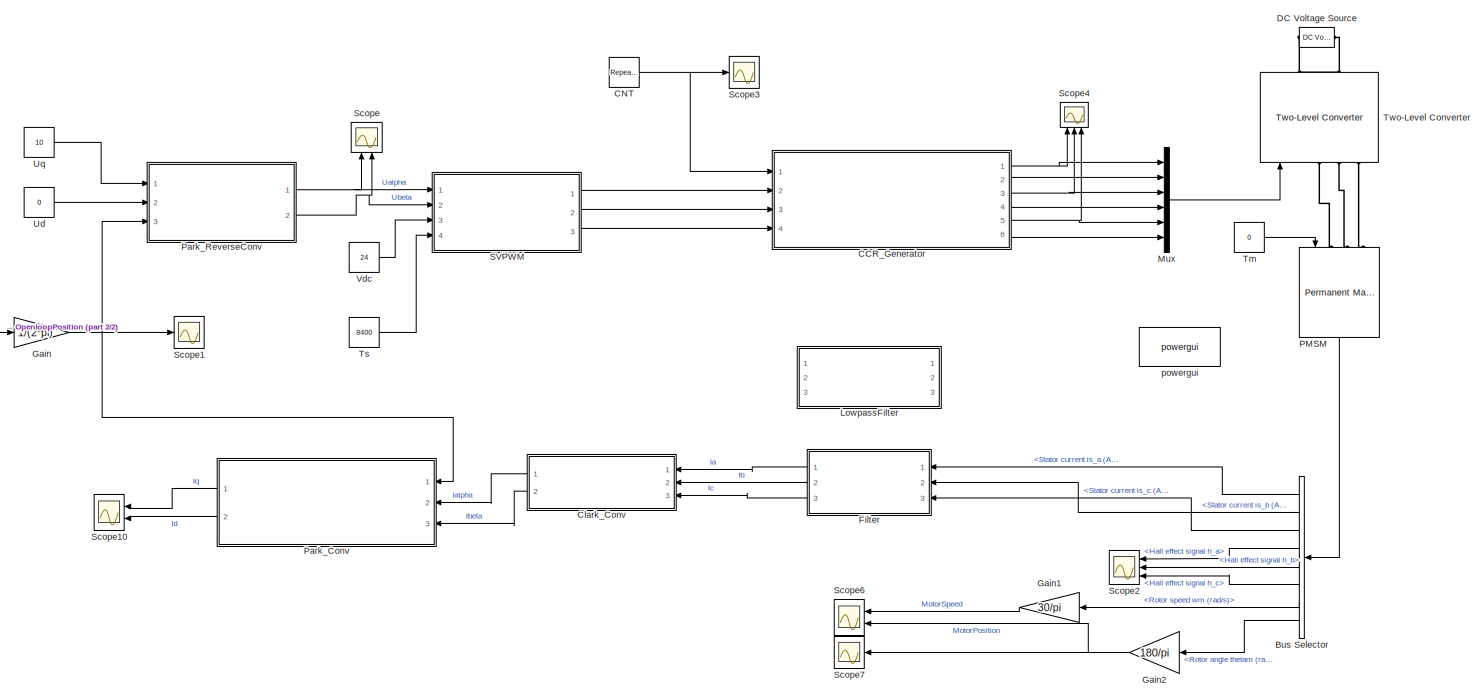
[diagram: root canvas - part 1/2, most of the canvas]
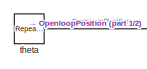
[diagram: root canvas - part 2/2, middle left region]
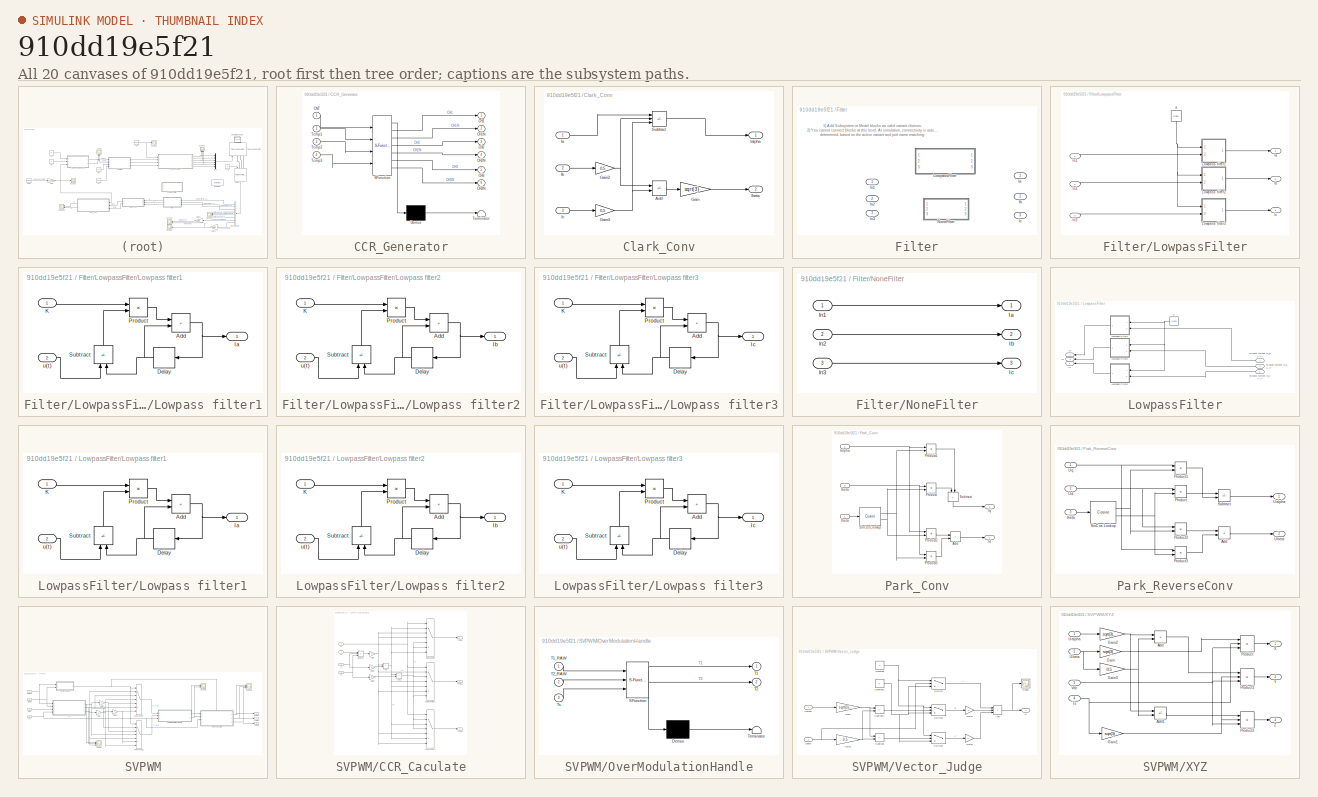
[diagram: thumbnail index - all 20 canvases of the model, root first then tree order]
MODEL slx_910dd19e5f21
KIND model
CONFIG AbsTol = auto
CONFIG EnableMultiTasking = off
CONFIG FixedStep = 0.00001
CONFIG MaxStep = auto
CONFIG MinStep = auto
CONFIG RelTol = 1e-3
CONFIG SampleTimeConstraint = Unconstrained
CONFIG SolverName = FixedStepDiscrete
CONFIG StartTime = 0.0
CONFIG StopTime = 1
WORKSPACE source: mxarray member
WORKSPACE K = 1
BLOCK [BusSelector] Bus Selector
  NameLocation = top
  OutputSignals = Stator current is_a (A),Stator current is_b (A),Stator current is_c (A),Hall effect signal h_a,Hall effect signal h_b,Hall effect signal h_c,Rotor speed wm (rad/s),Rotor angle thetam (rad)
  Ports = [1, 8]
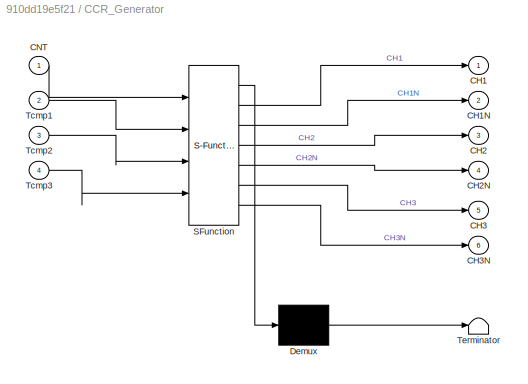
BLOCK [SubSystem] CCR_Generator
  ErrorFcn = Stateflow.Translate.translate
  PermitHierarchicalResolution = ExplicitOnly
  Ports = [4, 6]
  RequestExecContextInheritance = off
  SFBlockType = MATLAB Function
  TreatAsAtomicUnit = on
BLOCK [Demux] CCR_Generator/ Demux 
  Outputs = 1
  Ports = [1, 1]
BLOCK [S-Function] CCR_Generator/ SFunction 
  EnableBusSupport = on
  FunctionName = sf_sfun
  PortCounts = [4 7]
  Ports = [4, 7]
  SFcnIsStateOwnerBlock = off
  SFunctionDeploymentMode = off
  Tag = Stateflow S-Function 1
BLOCK [Terminator] CCR_Generator/ Terminator 
BLOCK [Outport] CCR_Generator/CH1
BLOCK [Outport] CCR_Generator/CH1N
  Port = 2
BLOCK [Outport] CCR_Generator/CH2
  Port = 3
BLOCK [Outport] CCR_Generator/CH2N
  Port = 4
BLOCK [Outport] CCR_Generator/CH3
  Port = 5
BLOCK [Outport] CCR_Generator/CH3N
  Port = 6
BLOCK [Inport] CCR_Generator/CNT
BLOCK [Inport] CCR_Generator/Tcmp1
  Port = 2
BLOCK [Inport] CCR_Generator/Tcmp2
  Port = 3
BLOCK [Inport] CCR_Generator/Tcmp3
  Port = 4
BLOCK [Reference] CNT  REF=simulink/Sources/Repeating
Sequence
  Ports = [0, 1]
  SourceBlock = simulink/Sources/Repeating\nSequence
  SourceProductBaseCode = SL
  SourceType = Repeating table
BLOCK [SubSystem] Clark_Conv
  Ports = [3, 2]
  RequestExecContextInheritance = off
BLOCK [Sum] Clark_Conv/Add
  IconShape = rectangular
  Inputs = +-
  Ports = [2, 1]
BLOCK [Gain] Clark_Conv/Gain
  Gain = sqrt(3)
BLOCK [Gain] Clark_Conv/Gain2
  Gain = 0.5
BLOCK [Gain] Clark_Conv/Gain3
  Gain = 0.5
BLOCK [Inport] Clark_Conv/Ia
BLOCK [Outport] Clark_Conv/Ialpha
BLOCK [Inport] Clark_Conv/Ib
  Port = 2
BLOCK [Outport] Clark_Conv/Ibeta
  Port = 2
BLOCK [Inport] Clark_Conv/Ic
  Port = 3
BLOCK [Sum] Clark_Conv/Subtract
  IconShape = rectangular
  Inputs = +--
  Ports = [3, 1]
BLOCK [Reference] DC Voltage Source  REF=spsDCVoltageSourceLib/DC Voltage Source
  NameLocation = right
  Ports = [0, 0, 0, 0, 0, 1, 1]
  SourceBlock = spsDCVoltageSourceLib/DC Voltage Source
  SourceProductBaseCode = PS
  SourceType = DC Voltage Source
BLOCK [SubSystem] Filter
  Ports = [3, 3]
  RequestExecContextInheritance = off
  Variant = on
BLOCK [Outport] Filter/Ia
BLOCK [Outport] Filter/Ib
  Port = 2
BLOCK [Outport] Filter/Ic
  Port = 3
BLOCK [SubSystem] Filter/LowpassFilter
  Ports = [3, 3]
  RequestExecContextInheritance = off
  VariantControl = K==1
BLOCK [Outport] Filter/LowpassFilter/Ia
BLOCK [Outport] Filter/LowpassFilter/Ib
  Port = 2
BLOCK [Outport] Filter/LowpassFilter/Ic
  Port = 3
BLOCK [SubSystem] Filter/LowpassFilter/Lowpass filter1
  Ports = [2, 1]
  RequestExecContextInheritance = off
BLOCK [Sum] Filter/LowpassFilter/Lowpass filter1/Add
  IconShape = rectangular
  Ports = [2, 1]
BLOCK [Delay] Filter/LowpassFilter/Lowpass filter1/Delay
  DelayLength = 1
  InputPortMap = u0
  Ports = [1, 1]
BLOCK [Outport] Filter/LowpassFilter/Lowpass filter1/Ia
BLOCK [Inport] Filter/LowpassFilter/Lowpass filter1/K
BLOCK [Product] Filter/LowpassFilter/Lowpass filter1/Product
  Ports = [2, 1]
BLOCK [Sum] Filter/LowpassFilter/Lowpass filter1/Subtract
  IconShape = rectangular
  Inputs = +-
  NameLocation = left
  Ports = [2, 1]
BLOCK [Inport] Filter/LowpassFilter/Lowpass filter1/u(t)
  Port = 2
BLOCK [SubSystem] Filter/LowpassFilter/Lowpass filter2
  Ports = [2, 1]
  RequestExecContextInheritance = off
BLOCK [Sum] Filter/LowpassFilter/Lowpass filter2/Add
  IconShape = rectangular
  Ports = [2, 1]
BLOCK [Delay] Filter/LowpassFilter/Lowpass filter2/Delay
  DelayLength = 1
  InputPortMap = u0
  Ports = [1, 1]
BLOCK [Outport] Filter/LowpassFilter/Lowpass filter2/Ib
BLOCK [Inport] Filter/LowpassFilter/Lowpass filter2/K
BLOCK [Product] Filter/LowpassFilter/Lowpass filter2/Product
  Ports = [2, 1]
BLOCK [Sum] Filter/LowpassFilter/Lowpass filter2/Subtract
  IconShape = rectangular
  Inputs = +-
  NameLocation = left
  Ports = [2, 1]
BLOCK [Inport] Filter/LowpassFilter/Lowpass filter2/u(t)
  Port = 2
BLOCK [SubSystem] Filter/LowpassFilter/Lowpass filter3
  Ports = [2, 1]
  RequestExecContextInheritance = off
BLOCK [Sum] Filter/LowpassFilter/Lowpass filter3/Add
  IconShape = rectangular
  Ports = [2, 1]
BLOCK [Delay] Filter/LowpassFilter/Lowpass filter3/Delay
  DelayLength = 1
  InputPortMap = u0
  Ports = [1, 1]
BLOCK [Outport] Filter/LowpassFilter/Lowpass filter3/Ic
BLOCK [Inport] Filter/LowpassFilter/Lowpass filter3/K
BLOCK [Product] Filter/LowpassFilter/Lowpass filter3/Product
  Ports = [2, 1]
BLOCK [Sum] Filter/LowpassFilter/Lowpass filter3/Subtract
  IconShape = rectangular
  Inputs = +-
  NameLocation = left
  Ports = [2, 1]
BLOCK [Inport] Filter/LowpassFilter/Lowpass filter3/u(t)
  Port = 2
BLOCK [Constant] Filter/LowpassFilter/a
  NameLocation = left
  Value = 0.001
BLOCK [Inport] Filter/LowpassFilter/ln1
BLOCK [Inport] Filter/LowpassFilter/ln2
  Port = 2
BLOCK [Inport] Filter/LowpassFilter/ln3
  Port = 3
BLOCK [SubSystem] Filter/NoneFilter
  Ports = [3, 3]
  RequestExecContextInheritance = off
  VariantControl = K==0
BLOCK [Outport] Filter/NoneFilter/Ia
BLOCK [Outport] Filter/NoneFilter/Ib
  Port = 2
BLOCK [Outport] Filter/NoneFilter/Ic
  Port = 3
BLOCK [Inport] Filter/NoneFilter/ln1
BLOCK [Inport] Filter/NoneFilter/ln2
  Port = 2
BLOCK [Inport] Filter/NoneFilter/ln3
  Port = 3
BLOCK [Inport] Filter/ln1
BLOCK [Inport] Filter/ln2
  Port = 2
BLOCK [Inport] Filter/ln3
  Port = 3
BLOCK [Gain] Gain
  Gain = 1/(2*pi)
BLOCK [Gain] Gain1
  Gain = 30/pi
BLOCK [Gain] Gain2
  Gain = 180/pi
  NameLocation = top
BLOCK [SubSystem] LowpassFilter
  Commented = on
  Ports = [3, 3]
  RequestExecContextInheritance = off
BLOCK [Inport] LowpassFilter/<Stator current is_a (A)>
BLOCK [Inport] LowpassFilter/<Stator current is_b (A)>
  Port = 2
BLOCK [Inport] LowpassFilter/<Stator current is_c (A)>
  Port = 3
BLOCK [Outport] LowpassFilter/Ia
BLOCK [Outport] LowpassFilter/Ib
  Port = 2
BLOCK [Outport] LowpassFilter/Ic
  Port = 3
BLOCK [SubSystem] LowpassFilter/Lowpass filter1
  Ports = [2, 1]
  RequestExecContextInheritance = off
BLOCK [Sum] LowpassFilter/Lowpass filter1/Add
  IconShape = rectangular
  Ports = [2, 1]
BLOCK [Delay] LowpassFilter/Lowpass filter1/Delay
  DelayLength = 1
  InputPortMap = u0
  Ports = [1, 1]
BLOCK [Outport] LowpassFilter/Lowpass filter1/Ia
BLOCK [Inport] LowpassFilter/Lowpass filter1/K
BLOCK [Product] LowpassFilter/Lowpass filter1/Product
  Ports = [2, 1]
BLOCK [Sum] LowpassFilter/Lowpass filter1/Subtract
  IconShape = rectangular
  Inputs = +-
  NameLocation = left
  Ports = [2, 1]
BLOCK [Inport] LowpassFilter/Lowpass filter1/u(t)
  Port = 2
BLOCK [SubSystem] LowpassFilter/Lowpass filter2
  Ports = [2, 1]
  RequestExecContextInheritance = off
BLOCK [Sum] LowpassFilter/Lowpass filter2/Add
  IconShape = rectangular
  Ports = [2, 1]
BLOCK [Delay] LowpassFilter/Lowpass filter2/Delay
  DelayLength = 1
  InputPortMap = u0
  Ports = [1, 1]
BLOCK [Outport] LowpassFilter/Lowpass filter2/Ib
BLOCK [Inport] LowpassFilter/Lowpass filter2/K
BLOCK [Product] LowpassFilter/Lowpass filter2/Product
  Ports = [2, 1]
BLOCK [Sum] LowpassFilter/Lowpass filter2/Subtract
  IconShape = rectangular
  Inputs = +-
  NameLocation = left
  Ports = [2, 1]
BLOCK [Inport] LowpassFilter/Lowpass filter2/u(t)
  Port = 2
BLOCK [SubSystem] LowpassFilter/Lowpass filter3
  Ports = [2, 1]
  RequestExecContextInheritance = off
BLOCK [Sum] LowpassFilter/Lowpass filter3/Add
  IconShape = rectangular
  Ports = [2, 1]
BLOCK [Delay] LowpassFilter/Lowpass filter3/Delay
  DelayLength = 1
  InputPortMap = u0
  Ports = [1, 1]
BLOCK [Outport] LowpassFilter/Lowpass filter3/Ic
BLOCK [Inport] LowpassFilter/Lowpass filter3/K
BLOCK [Product] LowpassFilter/Lowpass filter3/Product
  Ports = [2, 1]
BLOCK [Sum] LowpassFilter/Lowpass filter3/Subtract
  IconShape = rectangular
  Inputs = +-
  NameLocation = left
  Ports = [2, 1]
BLOCK [Inport] LowpassFilter/Lowpass filter3/u(t)
  Port = 2
BLOCK [Constant] LowpassFilter/a
  Value = 0.001
BLOCK [Mux] Mux
  DisplayOption = bar
  Inputs = 6
  Ports = [6, 1]
BLOCK [Reference] PMSM  REF=spsPermanentMagnetSynchronousMachineLib/Permanent Magnet
Synchronous Machine
  NameLocation = left
  Ports = [1, 1, 0, 0, 0, 3]
  SourceBlock = spsPermanentMagnetSynchronousMachineLib/Permanent Magnet\nSynchronous Machine
  SourceProductBaseCode = PS
  SourceType = Permanent Magnet Synchronous Machine
BLOCK [SubSystem] Park_Conv
  Ports = [3, 2]
  RequestExecContextInheritance = off
BLOCK [Sum] Park_Conv/Add
  IconShape = rectangular
  Ports = [2, 1]
BLOCK [Inport] Park_Conv/Ialpha
  Port = 2
BLOCK [Inport] Park_Conv/Ibeta
  Port = 3
BLOCK [Outport] Park_Conv/Id
  Port = 2
BLOCK [Outport] Park_Conv/Iq
BLOCK [Product] Park_Conv/Product
  Ports = [2, 1]
BLOCK [Product] Park_Conv/Product1
  Ports = [2, 1]
BLOCK [Product] Park_Conv/Product2
  Ports = [2, 1]
BLOCK [Product] Park_Conv/Product3
  Ports = [2, 1]
BLOCK [Reference] Park_Conv/SinCos Lookup  REF=simulink/Lookup
Tables/Cosine
  Ports = [1, 2]
  SourceBlock = simulink/Lookup\nTables/Cosine
  SourceProductBaseCode = SL
  SourceType = Sine and Cosine
BLOCK [Sum] Park_Conv/Subtract
  IconShape = rectangular
  Inputs = +-
  NameLocation = right
  Ports = [2, 1]
BLOCK [Inport] Park_Conv/theta
BLOCK [SubSystem] Park_ReverseConv
  Ports = [3, 2]
  RequestExecContextInheritance = off
BLOCK [Sum] Park_ReverseConv/Add
  IconShape = rectangular
  Ports = [2, 1]
BLOCK [Product] Park_ReverseConv/Product
  Ports = [2, 1]
BLOCK [Product] Park_ReverseConv/Product1
  Ports = [2, 1]
BLOCK [Product] Park_ReverseConv/Product2
  Ports = [2, 1]
BLOCK [Product] Park_ReverseConv/Product3
  Ports = [2, 1]
BLOCK [Reference] Park_ReverseConv/SinCos Lookup  REF=simulink/Lookup
Tables/Cosine
  Ports = [1, 2]
  SourceBlock = simulink/Lookup\nTables/Cosine
  SourceProductBaseCode = SL
  SourceType = Sine and Cosine
BLOCK [Sum] Park_ReverseConv/Subtract
  IconShape = rectangular
  Inputs = +-
  Ports = [2, 1]
BLOCK [Outport] Park_ReverseConv/Ualpha
BLOCK [Outport] Park_ReverseConv/Ubeta
  Port = 2
BLOCK [Inport] Park_ReverseConv/Ud
  Port = 2
BLOCK [Inport] Park_ReverseConv/Uq
BLOCK [Inport] Park_ReverseConv/theta
  Port = 3
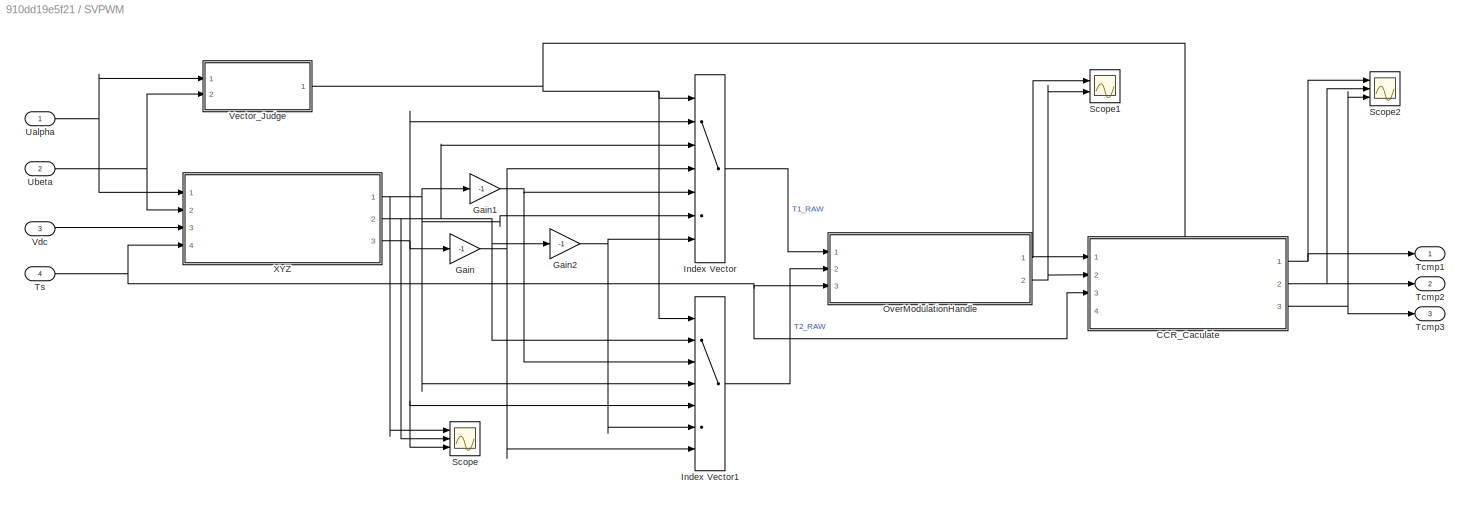
BLOCK [SubSystem] SVPWM
  Ports = [4, 3]
  RequestExecContextInheritance = off
BLOCK [SubSystem] SVPWM/CCR_Caculate
  PortSchema = {"entries":[{"content":{"sides":[{"content":{"connectorIds":["In1","In2","In3"]},"type":"ConnectorPlacement.EquallySpacedRectSide","uuid":"41d89106-695f-4d7e-9c99-c52170b99868"},{"content":{"connectorIds":["Out1","Out2","Out3"],"side":"RIGHT"},"type":"ConnectorPlacement.EquallySpacedRectSide","uuid":"0fa1e6b9-7088-4c16-9dd3-c016449aae3e"},{"content":{"connectorIds":["In4"],"side":"TOP"},"type":"Co...<+271ch>
  Ports = [4, 3]
  RequestExecContextInheritance = off
BLOCK [Sum] SVPWM/CCR_Caculate/Add
  IconShape = rectangular
  Ports = [2, 1]
BLOCK [Sum] SVPWM/CCR_Caculate/Add1
  IconShape = rectangular
  Ports = [2, 1]
BLOCK [Gain] SVPWM/CCR_Caculate/Gain
  Gain = 1/4
BLOCK [Gain] SVPWM/CCR_Caculate/Gain1
  Gain = 1/2
BLOCK [Gain] SVPWM/CCR_Caculate/Gain2
  Gain = 1/2
BLOCK [MultiPortSwitch] SVPWM/CCR_Caculate/Index Vector
  InputSameDT = off
  Inputs = 6
  Ports = [7, 1]
  SaturateOnIntegerOverflow = off
BLOCK [MultiPortSwitch] SVPWM/CCR_Caculate/Index Vector1
  InputSameDT = off
  Inputs = 6
  Ports = [7, 1]
  SaturateOnIntegerOverflow = off
BLOCK [MultiPortSwitch] SVPWM/CCR_Caculate/Index Vector2
  InputSameDT = off
  Inputs = 6
  Ports = [7, 1]
  SaturateOnIntegerOverflow = off
BLOCK [Inport] SVPWM/CCR_Caculate/N
  Port = 4
BLOCK [Sum] SVPWM/CCR_Caculate/Subtract
  IconShape = rectangular
  Inputs = +--
  Ports = [3, 1]
BLOCK [Inport] SVPWM/CCR_Caculate/T1
BLOCK [Inport] SVPWM/CCR_Caculate/T2
  Port = 2
BLOCK [Outport] SVPWM/CCR_Caculate/Tcmp1
BLOCK [Outport] SVPWM/CCR_Caculate/Tcmp2
  Port = 2
BLOCK [Outport] SVPWM/CCR_Caculate/Tcmp3
  Port = 3
BLOCK [Inport] SVPWM/CCR_Caculate/Ts
  Port = 3
BLOCK [Gain] SVPWM/Gain
  Gain = -1
BLOCK [Gain] SVPWM/Gain1
  Gain = -1
BLOCK [Gain] SVPWM/Gain2
  Gain = -1
BLOCK [MultiPortSwitch] SVPWM/Index Vector
  InputSameDT = off
  Inputs = 6
  Ports = [7, 1]
  SaturateOnIntegerOverflow = off
BLOCK [MultiPortSwitch] SVPWM/Index Vector1
  InputSameDT = off
  Inputs = 6
  Ports = [7, 1]
  SaturateOnIntegerOverflow = off
BLOCK [SubSystem] SVPWM/OverModulationHandle
  ErrorFcn = Stateflow.Translate.translate
  PermitHierarchicalResolution = ExplicitOnly
  Ports = [3, 2]
  RequestExecContextInheritance = off
  SFBlockType = MATLAB Function
  TreatAsAtomicUnit = on
BLOCK [Demux] SVPWM/OverModulationHandle/ Demux 
  Outputs = 1
  Ports = [1, 1]
BLOCK [S-Function] SVPWM/OverModulationHandle/ SFunction 
  EnableBusSupport = on
  FunctionName = sf_sfun
  PortCounts = [3 3]
  Ports = [3, 3]
  SFcnIsStateOwnerBlock = off
  SFunctionDeploymentMode = off
  Tag = Stateflow S-Function 2
BLOCK [Terminator] SVPWM/OverModulationHandle/ Terminator 
BLOCK [Outport] SVPWM/OverModulationHandle/T1
BLOCK [Inport] SVPWM/OverModulationHandle/T1_RAW
BLOCK [Outport] SVPWM/OverModulationHandle/T2
  Port = 2
BLOCK [Inport] SVPWM/OverModulationHandle/T2_RAW
  Port = 2
BLOCK [Inport] SVPWM/OverModulationHandle/Ts
  Port = 3
BLOCK [Scope] SVPWM/Scope
  Floating = off
  NumInputPorts = 3
  Ports = [3]
  ScopeSpecificationString = Simulink.scopes.TimeScopeBlockCfg('CurrentConfiguration', extmgr.ConfigurationSet(extmgr.Configuration('Core','General UI',true),extmgr.Configuration('Core','Source UI',true),extmgr.Configuration('Sources','WiredSimulink',true,'DataLoggingVariableName','ScopeData2'),extmgr.Configuration('Visuals','Time Domain',true,'SerializedDisplays',{struct('MinYLimReal','-10840.7399','MaxYLimReal','10882.04333...<+1438ch>
BLOCK [Scope] SVPWM/Scope1
  Floating = off
  NumInputPorts = 2
  Ports = [2]
  ScopeSpecificationString = Simulink.scopes.TimeScopeBlockCfg('CurrentConfiguration', extmgr.ConfigurationSet(extmgr.Configuration('Core','General UI',true),extmgr.Configuration('Core','Source UI',true),extmgr.Configuration('Sources','WiredSimulink',true,'DataLoggingVariableName','ScopeData3'),extmgr.Configuration('Visuals','Time Domain',true,'SerializedDisplays',{struct('MinYLimReal','-881.09887','MaxYLimReal','7929.96151',...<+1456ch>
BLOCK [Scope] SVPWM/Scope2
  Floating = off
  NumInputPorts = 3
  Ports = [3]
  ScopeSpecificationString = Simulink.scopes.TimeScopeBlockCfg('CurrentConfiguration', extmgr.ConfigurationSet(extmgr.Configuration('Core','General UI',true),extmgr.Configuration('Core','Source UI',true),extmgr.Configuration('Sources','WiredSimulink',true,'DataLoggingVariableName','ScopeData4'),extmgr.Configuration('Visuals','Time Domain',true,'SerializedDisplays',{struct('MinYLimReal','205.56943','MaxYLimReal','3994.43057','...<+1456ch>
BLOCK [Outport] SVPWM/Tcmp1
BLOCK [Outport] SVPWM/Tcmp2
  Port = 2
BLOCK [Outport] SVPWM/Tcmp3
  Port = 3
BLOCK [Inport] SVPWM/Ts
  Port = 4
BLOCK [Inport] SVPWM/Ualpha
BLOCK [Inport] SVPWM/Ubeta
  Port = 2
BLOCK [Inport] SVPWM/Vdc
  Port = 3
BLOCK [SubSystem] SVPWM/Vector_Judge
  Ports = [2, 1]
  RequestExecContextInheritance = off
BLOCK [Sum] SVPWM/Vector_Judge/Add
  IconShape = rectangular
  Inputs = +++
  Ports = [3, 1]
BLOCK [Constant] SVPWM/Vector_Judge/Constant
BLOCK [Constant] SVPWM/Vector_Judge/Constant1
  Value = 0
BLOCK [Gain] SVPWM/Vector_Judge/Gain
  Gain = sqrt(3)/2
BLOCK [Gain] SVPWM/Vector_Judge/Gain1
  Gain = 0.5
BLOCK [Gain] SVPWM/Vector_Judge/Gain2
  Gain = 2
BLOCK [Gain] SVPWM/Vector_Judge/Gain3
  Gain = 4
BLOCK [Outport] SVPWM/Vector_Judge/N
BLOCK [Scope] SVPWM/Vector_Judge/Scope
  Floating = off
  NumInputPorts = 1
  Ports = [1]
  ScopeSpecificationString = Simulink.scopes.TimeScopeBlockCfg('CurrentConfiguration', extmgr.ConfigurationSet(extmgr.Configuration('Core','General UI',true),extmgr.Configuration('Core','Source UI',true),extmgr.Configuration('Sources','WiredSimulink',true,'DataLoggingVariableName','ScopeData1'),extmgr.Configuration('Visuals','Time Domain',true,'SerializedDisplays',{struct('MinYLimReal','0.375','MaxYLimReal','6.625','YLabelRea...<+1371ch>
BLOCK [Sum] SVPWM/Vector_Judge/Subtract
  IconShape = rectangular
  Inputs = --
  Ports = [2, 1]
BLOCK [Sum] SVPWM/Vector_Judge/Subtract1
  IconShape = rectangular
  Inputs = +-
  Ports = [2, 1]
BLOCK [Switch] SVPWM/Vector_Judge/Switch
  Criteria = u2 > Threshold
  InputSameDT = off
  SaturateOnIntegerOverflow = off
BLOCK [Switch] SVPWM/Vector_Judge/Switch1
  Criteria = u2 > Threshold
  InputSameDT = off
  SaturateOnIntegerOverflow = off
BLOCK [Switch] SVPWM/Vector_Judge/Switch2
  Criteria = u2 > Threshold
  InputSameDT = off
  SaturateOnIntegerOverflow = off
BLOCK [Inport] SVPWM/Vector_Judge/Ualpha
BLOCK [Inport] SVPWM/Vector_Judge/Ubeta
  Port = 2
BLOCK [SubSystem] SVPWM/XYZ
  Ports = [4, 3]
  RequestExecContextInheritance = off
BLOCK [Sum] SVPWM/XYZ/Add
  IconShape = rectangular
  Ports = [2, 1]
BLOCK [Sum] SVPWM/XYZ/Add1
  IconShape = rectangular
  Inputs = -+
  Ports = [2, 1]
BLOCK [Gain] SVPWM/XYZ/Gain
  Gain = sqrt(3)
BLOCK [Gain] SVPWM/XYZ/Gain1
  Gain = sqrt(3)
BLOCK [Gain] SVPWM/XYZ/Gain2
  Gain = sqrt(3)/2
BLOCK [Gain] SVPWM/XYZ/Gain3
  Gain = 0.5
BLOCK [Product] SVPWM/XYZ/Product
  Inputs = **/
  Ports = [3, 1]
BLOCK [Product] SVPWM/XYZ/Product1
  Inputs = **/
  Ports = [3, 1]
BLOCK [Product] SVPWM/XYZ/Product2
  Inputs = **/
  Ports = [3, 1]
BLOCK [Inport] SVPWM/XYZ/Ts
  Port = 4
BLOCK [Inport] SVPWM/XYZ/Ualpha
BLOCK [Inport] SVPWM/XYZ/Ubeta
  Port = 2
BLOCK [Inport] SVPWM/XYZ/Vdc
  Port = 3
BLOCK [Outport] SVPWM/XYZ/X
BLOCK [Outport] SVPWM/XYZ/Y
  Port = 2
BLOCK [Outport] SVPWM/XYZ/Z
  Port = 3
BLOCK [Scope] Scope
  Floating = off
  NameLocation = right
  NumInputPorts = 2
  Ports = [2]
  ScopeSpecificationString = Simulink.scopes.TimeScopeBlockCfg('CurrentConfiguration', extmgr.ConfigurationSet(extmgr.Configuration('Core','General UI',true,'FigureColor',[1 1 1]),extmgr.Configuration('Core','Source UI',true),extmgr.Configuration('Sources','WiredSimulink',true),extmgr.Configuration('Visuals','Time Domain',true,'SerializedDisplays',{struct('MinYLimReal','-12.5','MaxYLimReal','12.5','YLabelReal','电压(V)','MinYLi...<+1706ch>
BLOCK [Scope] Scope1
  Floating = off
  NumInputPorts = 1
  Ports = [1]
  ScopeSpecificationString = Simulink.scopes.TimeScopeBlockCfg('CurrentConfiguration', extmgr.ConfigurationSet(extmgr.Configuration('Core','General UI',true),extmgr.Configuration('Core','Source UI',true),extmgr.Configuration('Sources','WiredSimulink',true,'DataLoggingVariableName','ScopeData1'),extmgr.Configuration('Visuals','Time Domain',true,'SerializedDisplays',{struct('MinYLimReal','-0.12487','MaxYLimReal','1.12388','YLab...<+1436ch>
BLOCK [Scope] Scope10
  Floating = off
  NumInputPorts = 2
  Ports = [2]
  ScopeSpecificationString = Simulink.scopes.TimeScopeBlockCfg('CurrentConfiguration', extmgr.ConfigurationSet(extmgr.Configuration('Core','General UI',true,'FigureColor',[1 1 1]),extmgr.Configuration('Core','Source UI',true),extmgr.Configuration('Sources','WiredSimulink',true,'DataLoggingVariableName','ScopeData1'),extmgr.Configuration('Visuals','Time Domain',true,'SerializedDisplays',{struct('MinYLimReal','-18.97976','MaxYL...<+1681ch>
BLOCK [Scope] Scope2
  Floating = off
  NumInputPorts = 3
  Ports = [3]
  ScopeSpecificationString = Simulink.scopes.TimeScopeBlockCfg('CurrentConfiguration', extmgr.ConfigurationSet(extmgr.Configuration('Core','General UI',true),extmgr.Configuration('Core','Source UI',true),extmgr.Configuration('Sources','WiredSimulink',true,'DataLoggingVariableName','ScopeData3'),extmgr.Configuration('Visuals','Time Domain',true,'SerializedDisplays',{struct('MinYLimReal','-0.125','MaxYLimReal','1.125','YLabelRe...<+2804ch>
BLOCK [Scope] Scope3
  Floating = off
  NumInputPorts = 1
  Ports = [1]
  ScopeSpecificationString = Simulink.scopes.TimeScopeBlockCfg('CurrentConfiguration', extmgr.ConfigurationSet(extmgr.Configuration('Core','General UI',true),extmgr.Configuration('Core','Source UI',true),extmgr.Configuration('Sources','WiredSimulink',true,'DataLoggingVariableName','ScopeData1'),extmgr.Configuration('Visuals','Time Domain',true,'SerializedDisplays',{struct('MinYLimReal','-525.00000','MaxYLimReal','4725.00000',...<+1453ch>
BLOCK [Scope] Scope4
  Floating = off
  NameLocation = right
  NumInputPorts = 3
  Ports = [3]
  ScopeSpecificationString = Simulink.scopes.TimeScopeBlockCfg('CurrentConfiguration', extmgr.ConfigurationSet(extmgr.Configuration('Core','General UI',true,'FigureColor',[1 1 1]),extmgr.Configuration('Core','Source UI',true),extmgr.Configuration('Sources','WiredSimulink',true,'DataLoggingVariableName','ScopeData2'),extmgr.Configuration('Visuals','Time Domain',true,'SerializedDisplays',{struct('MinYLimReal','-0.125','MaxYLimR...<+3275ch>
BLOCK [Scope] Scope6
  Floating = off
  NumInputPorts = 2
  Ports = [2]
  ScopeSpecificationString = Simulink.scopes.TimeScopeBlockCfg('CurrentConfiguration', extmgr.ConfigurationSet(extmgr.Configuration('Core','General UI',true,'FigureColor',[1 1 1]),extmgr.Configuration('Core','Source UI',true),extmgr.Configuration('Sources','WiredSimulink',true,'DataLoggingVariableName','ScopeData5'),extmgr.Configuration('Visuals','Time Domain',true,'SerializedDisplays',{struct('MinYLimReal','-37.45602','MaxYL...<+2324ch>
BLOCK [Scope] Scope7
  Floating = off
  NameLocation = top
  NumInputPorts = 1
  Ports = [1]
  ScopeSpecificationString = Simulink.scopes.TimeScopeBlockCfg('CurrentConfiguration', extmgr.ConfigurationSet(extmgr.Configuration('Core','General UI',true),extmgr.Configuration('Core','Source UI',true),extmgr.Configuration('Sources','WiredSimulink',true,'DataLoggingVariableName','ScopeData6'),extmgr.Configuration('Visuals','Time Domain',true,'SerializedDisplays',{struct('MinYLimReal','-49.17272','MaxYLimReal','442.55451','Y...<+1428ch>
BLOCK [Constant] Tm
  Value = 0
BLOCK [Constant] Ts
  Value = 8400
BLOCK [Reference] Two-Level Converter  REF=spsTwoLevelConverterLib/Two-Level Converter
  NameLocation = right
  Ports = [2, 0, 0, 0, 0, 3, 2]
  SourceBlock = spsTwoLevelConverterLib/Two-Level Converter
  SourceProductBaseCode = PS
  SourceType = Two-Level Converter
BLOCK [Constant] Ud
  Value = 0
BLOCK [Constant] Uq
  Value = 10
BLOCK [Constant] Vdc
  Value = 24
BLOCK [Reference] powergui  REF=spspowerguiLib/powergui
  Ports = []
  Priority = 1
  SourceBlock = spspowerguiLib/powergui
  SourceProductBaseCode = PS
  SourceType = PSB option menu block
BLOCK [Reference] theta  REF=simulink/Sources/Repeating
Sequence
  Ports = [0, 1]
  SourceBlock = simulink/Sources/Repeating\nSequence
  SourceProductBaseCode = SL
  SourceType = Repeating table
ANNOTATION Filter: 1) Add Subsystem or Model blocks as valid variant choices. 2) You cannot connect blocks at this level. At simulation, connectivity is automatically determined, based on the active variant and port name matching.
LINE Bus Selector:1 -> Filter:1
LINE Bus Selector:2 -> Filter:2
LINE Bus Selector:3 -> Filter:3
LINE Bus Selector:4 -> Scope2:1
LINE Bus Selector:5 -> Scope2:2
LINE Bus Selector:6 -> Scope2:3
LINE Bus Selector:7 -> Gain1:1
LINE Bus Selector:8 -> Gain2:1
NET CCR_Generator:1 -> Mux:1, Scope4:1
LINE CCR_Generator:2 -> Mux:2
NET CCR_Generator:3 -> Mux:3, Scope4:2
LINE CCR_Generator:4 -> Mux:4
NET CCR_Generator:5 -> Mux:5, Scope4:3
LINE CCR_Generator:6 -> Mux:6
NET CNT:1 -> CCR_Generator:1, Scope3:1
LINE Clark_Conv/Add:1 -> Clark_Conv/Gain:1
NET Clark_Conv/Gain2:1 -> Clark_Conv/Add:1, Clark_Conv/Subtract:2
NET Clark_Conv/Gain3:1 -> Clark_Conv/Add:2, Clark_Conv/Subtract:3
LINE Clark_Conv/Gain:1 -> Clark_Conv/Ibeta:1
LINE Clark_Conv/Ia:1 -> Clark_Conv/Subtract:1
LINE Clark_Conv/Ib:1 -> Clark_Conv/Gain2:1
LINE Clark_Conv/Ic:1 -> Clark_Conv/Gain3:1
LINE Clark_Conv/Subtract:1 -> Clark_Conv/Ialpha:1
LINE Clark_Conv:1 -> Park_Conv:2
LINE Clark_Conv:2 -> Park_Conv:3
NET Filter/LowpassFilter/Lowpass filter1/Add:1 -> Filter/LowpassFilter/Lowpass filter1/Delay:1, Filter/LowpassFilter/Lowpass filter1/Ia:1
NET Filter/LowpassFilter/Lowpass filter1/Delay:1 -> Filter/LowpassFilter/Lowpass filter1/Add:2, Filter/LowpassFilter/Lowpass filter1/Subtract:2
LINE Filter/LowpassFilter/Lowpass filter1/K:1 -> Filter/LowpassFilter/Lowpass filter1/Product:1
LINE Filter/LowpassFilter/Lowpass filter1/Product:1 -> Filter/LowpassFilter/Lowpass filter1/Add:1
LINE Filter/LowpassFilter/Lowpass filter1/Subtract:1 -> Filter/LowpassFilter/Lowpass filter1/Product:2
LINE Filter/LowpassFilter/Lowpass filter1/u(t):1 -> Filter/LowpassFilter/Lowpass filter1/Subtract:1
LINE Filter/LowpassFilter/Lowpass filter1:1 -> Filter/LowpassFilter/Ia:1
NET Filter/LowpassFilter/Lowpass filter2/Add:1 -> Filter/LowpassFilter/Lowpass filter2/Delay:1, Filter/LowpassFilter/Lowpass filter2/Ib:1
NET Filter/LowpassFilter/Lowpass filter2/Delay:1 -> Filter/LowpassFilter/Lowpass filter2/Add:2, Filter/LowpassFilter/Lowpass filter2/Subtract:2
LINE Filter/LowpassFilter/Lowpass filter2/K:1 -> Filter/LowpassFilter/Lowpass filter2/Product:1
LINE Filter/LowpassFilter/Lowpass filter2/Product:1 -> Filter/LowpassFilter/Lowpass filter2/Add:1
LINE Filter/LowpassFilter/Lowpass filter2/Subtract:1 -> Filter/LowpassFilter/Lowpass filter2/Product:2
LINE Filter/LowpassFilter/Lowpass filter2/u(t):1 -> Filter/LowpassFilter/Lowpass filter2/Subtract:1
LINE Filter/LowpassFilter/Lowpass filter2:1 -> Filter/LowpassFilter/Ib:1
NET Filter/LowpassFilter/Lowpass filter3/Add:1 -> Filter/LowpassFilter/Lowpass filter3/Delay:1, Filter/LowpassFilter/Lowpass filter3/Ic:1
NET Filter/LowpassFilter/Lowpass filter3/Delay:1 -> Filter/LowpassFilter/Lowpass filter3/Add:2, Filter/LowpassFilter/Lowpass filter3/Subtract:2
LINE Filter/LowpassFilter/Lowpass filter3/K:1 -> Filter/LowpassFilter/Lowpass filter3/Product:1
LINE Filter/LowpassFilter/Lowpass filter3/Product:1 -> Filter/LowpassFilter/Lowpass filter3/Add:1
LINE Filter/LowpassFilter/Lowpass filter3/Subtract:1 -> Filter/LowpassFilter/Lowpass filter3/Product:2
LINE Filter/LowpassFilter/Lowpass filter3/u(t):1 -> Filter/LowpassFilter/Lowpass filter3/Subtract:1
LINE Filter/LowpassFilter/Lowpass filter3:1 -> Filter/LowpassFilter/Ic:1
NET Filter/LowpassFilter/a:1 -> Filter/LowpassFilter/Lowpass filter1:1, Filter/LowpassFilter/Lowpass filter2:1, Filter/LowpassFilter/Lowpass filter3:1
LINE Filter/LowpassFilter/ln1:1 -> Filter/LowpassFilter/Lowpass filter1:2
LINE Filter/LowpassFilter/ln2:1 -> Filter/LowpassFilter/Lowpass filter2:2
LINE Filter/LowpassFilter/ln3:1 -> Filter/LowpassFilter/Lowpass filter3:2
LINE Filter/NoneFilter/ln1:1 -> Filter/NoneFilter/Ia:1
LINE Filter/NoneFilter/ln2:1 -> Filter/NoneFilter/Ib:1
LINE Filter/NoneFilter/ln3:1 -> Filter/NoneFilter/Ic:1
LINE Filter:1 -> Clark_Conv:1
LINE Filter:2 -> Clark_Conv:2
LINE Filter:3 -> Clark_Conv:3
LINE Gain1:1 -> Scope6:1
NET Gain2:1 -> Scope6:2, Scope7:1
NET Gain:1 -> Park_Conv:1, Park_ReverseConv:3, Scope1:1
LINE LowpassFilter/<Stator current is_a (A)>:1 -> LowpassFilter/Lowpass filter1:2
LINE LowpassFilter/<Stator current is_b (A)>:1 -> LowpassFilter/Lowpass filter2:2
LINE LowpassFilter/<Stator current is_c (A)>:1 -> LowpassFilter/Lowpass filter3:2
NET LowpassFilter/Lowpass filter1/Add:1 -> LowpassFilter/Lowpass filter1/Delay:1, LowpassFilter/Lowpass filter1/Ia:1
NET LowpassFilter/Lowpass filter1/Delay:1 -> LowpassFilter/Lowpass filter1/Add:2, LowpassFilter/Lowpass filter1/Subtract:2
LINE LowpassFilter/Lowpass filter1/K:1 -> LowpassFilter/Lowpass filter1/Product:1
LINE LowpassFilter/Lowpass filter1/Product:1 -> LowpassFilter/Lowpass filter1/Add:1
LINE LowpassFilter/Lowpass filter1/Subtract:1 -> LowpassFilter/Lowpass filter1/Product:2
LINE LowpassFilter/Lowpass filter1/u(t):1 -> LowpassFilter/Lowpass filter1/Subtract:1
LINE LowpassFilter/Lowpass filter1:1 -> LowpassFilter/Ia:1
NET LowpassFilter/Lowpass filter2/Add:1 -> LowpassFilter/Lowpass filter2/Delay:1, LowpassFilter/Lowpass filter2/Ib:1
NET LowpassFilter/Lowpass filter2/Delay:1 -> LowpassFilter/Lowpass filter2/Add:2, LowpassFilter/Lowpass filter2/Subtract:2
LINE LowpassFilter/Lowpass filter2/K:1 -> LowpassFilter/Lowpass filter2/Product:1
LINE LowpassFilter/Lowpass filter2/Product:1 -> LowpassFilter/Lowpass filter2/Add:1
LINE LowpassFilter/Lowpass filter2/Subtract:1 -> LowpassFilter/Lowpass filter2/Product:2
LINE LowpassFilter/Lowpass filter2/u(t):1 -> LowpassFilter/Lowpass filter2/Subtract:1
LINE LowpassFilter/Lowpass filter2:1 -> LowpassFilter/Ib:1
NET LowpassFilter/Lowpass filter3/Add:1 -> LowpassFilter/Lowpass filter3/Delay:1, LowpassFilter/Lowpass filter3/Ic:1
NET LowpassFilter/Lowpass filter3/Delay:1 -> LowpassFilter/Lowpass filter3/Add:2, LowpassFilter/Lowpass filter3/Subtract:2
LINE LowpassFilter/Lowpass filter3/K:1 -> LowpassFilter/Lowpass filter3/Product:1
LINE LowpassFilter/Lowpass filter3/Product:1 -> LowpassFilter/Lowpass filter3/Add:1
LINE LowpassFilter/Lowpass filter3/Subtract:1 -> LowpassFilter/Lowpass filter3/Product:2
LINE LowpassFilter/Lowpass filter3/u(t):1 -> LowpassFilter/Lowpass filter3/Subtract:1
LINE LowpassFilter/Lowpass filter3:1 -> LowpassFilter/Ic:1
NET LowpassFilter/a:1 -> LowpassFilter/Lowpass filter1:1, LowpassFilter/Lowpass filter2:1, LowpassFilter/Lowpass filter3:1
LINE Mux:1 -> Two-Level Converter:1
LINE PMSM:1 -> Bus Selector:1
LINE Park_Conv/Add:1 -> Park_Conv/Id:1
NET Park_Conv/Ialpha:1 -> Park_Conv/Product1:1, Park_Conv/Product2:1
NET Park_Conv/Ibeta:1 -> Park_Conv/Product3:1, Park_Conv/Product:1
LINE Park_Conv/Product1:1 -> Park_Conv/Subtract:2
LINE Park_Conv/Product2:1 -> Park_Conv/Add:1
LINE Park_Conv/Product3:1 -> Park_Conv/Add:2
LINE Park_Conv/Product:1 -> Park_Conv/Subtract:1
NET Park_Conv/SinCos Lookup:1 -> Park_Conv/Product1:2, Park_Conv/Product3:2
NET Park_Conv/SinCos Lookup:2 -> Park_Conv/Product2:2, Park_Conv/Product:2
LINE Park_Conv/Subtract:1 -> Park_Conv/Iq:1
LINE Park_Conv/theta:1 -> Park_Conv/SinCos Lookup:1
LINE Park_Conv:1 -> Scope10:1
LINE Park_Conv:2 -> Scope10:2
LINE Park_ReverseConv/Add:1 -> Park_ReverseConv/Ubeta:1
LINE Park_ReverseConv/Product1:1 -> Park_ReverseConv/Subtract:2
LINE Park_ReverseConv/Product2:1 -> Park_ReverseConv/Add:1
LINE Park_ReverseConv/Product3:1 -> Park_ReverseConv/Add:2
LINE Park_ReverseConv/Product:1 -> Park_ReverseConv/Subtract:1
NET Park_ReverseConv/SinCos Lookup:1 -> Park_ReverseConv/Product1:2, Park_ReverseConv/Product2:2
NET Park_ReverseConv/SinCos Lookup:2 -> Park_ReverseConv/Product3:2, Park_ReverseConv/Product:2
LINE Park_ReverseConv/Subtract:1 -> Park_ReverseConv/Ualpha:1
NET Park_ReverseConv/Ud:1 -> Park_ReverseConv/Product2:1, Park_ReverseConv/Product:1
NET Park_ReverseConv/Uq:1 -> Park_ReverseConv/Product1:1, Park_ReverseConv/Product3:1
LINE Park_ReverseConv/theta:1 -> Park_ReverseConv/SinCos Lookup:1
NET Park_ReverseConv:1 -> SVPWM:1, Scope:1
NET Park_ReverseConv:2 -> SVPWM:2, Scope:2
NET SVPWM/CCR_Caculate/Add1:1 -> SVPWM/CCR_Caculate/Index Vector1:3, SVPWM/CCR_Caculate/Index Vector1:7, SVPWM/CCR_Caculate/Index Vector2:2, SVPWM/CCR_Caculate/Index Vector2:4, SVPWM/CCR_Caculate/Index Vector:5, SVPWM/CCR_Caculate/Index Vector:6
NET SVPWM/CCR_Caculate/Add:1 -> SVPWM/CCR_Caculate/Add1:1, SVPWM/CCR_Caculate/Index Vector1:4, SVPWM/CCR_Caculate/Index Vector1:5, SVPWM/CCR_Caculate/Index Vector2:3, SVPWM/CCR_Caculate/Index Vector2:6, SVPWM/CCR_Caculate/Index Vector:2, SVPWM/CCR_Caculate/Index Vector:7
LINE SVPWM/CCR_Caculate/Gain1:1 -> SVPWM/CCR_Caculate/Add:2
LINE SVPWM/CCR_Caculate/Gain2:1 -> SVPWM/CCR_Caculate/Add1:2
NET SVPWM/CCR_Caculate/Gain:1 -> SVPWM/CCR_Caculate/Add:1, SVPWM/CCR_Caculate/Index Vector1:2, SVPWM/CCR_Caculate/Index Vector1:6, SVPWM/CCR_Caculate/Index Vector2:5, SVPWM/CCR_Caculate/Index Vector2:7, SVPWM/CCR_Caculate/Index Vector:3, SVPWM/CCR_Caculate/Index Vector:4
LINE SVPWM/CCR_Caculate/Index Vector1:1 -> SVPWM/CCR_Caculate/Tcmp2:1
LINE SVPWM/CCR_Caculate/Index Vector2:1 -> SVPWM/CCR_Caculate/Tcmp3:1
LINE SVPWM/CCR_Caculate/Index Vector:1 -> SVPWM/CCR_Caculate/Tcmp1:1
NET SVPWM/CCR_Caculate/N:1 -> SVPWM/CCR_Caculate/Index Vector1:1, SVPWM/CCR_Caculate/Index Vector2:1, SVPWM/CCR_Caculate/Index Vector:1
LINE SVPWM/CCR_Caculate/Subtract:1 -> SVPWM/CCR_Caculate/Gain:1
NET SVPWM/CCR_Caculate/T1:1 -> SVPWM/CCR_Caculate/Gain1:1, SVPWM/CCR_Caculate/Subtract:2
NET SVPWM/CCR_Caculate/T2:1 -> SVPWM/CCR_Caculate/Gain2:1, SVPWM/CCR_Caculate/Subtract:3
LINE SVPWM/CCR_Caculate/Ts:1 -> SVPWM/CCR_Caculate/Subtract:1
NET SVPWM/CCR_Caculate:1 -> SVPWM/Scope2:1, SVPWM/Tcmp1:1
NET SVPWM/CCR_Caculate:2 -> SVPWM/Scope2:2, SVPWM/Tcmp2:1
NET SVPWM/CCR_Caculate:3 -> SVPWM/Scope2:3, SVPWM/Tcmp3:1
NET SVPWM/Gain1:1 -> SVPWM/Index Vector1:3, SVPWM/Index Vector:5
NET SVPWM/Gain2:1 -> SVPWM/Index Vector1:6, SVPWM/Index Vector:7
NET SVPWM/Gain:1 -> SVPWM/Index Vector1:7, SVPWM/Index Vector:4
LINE SVPWM/Index Vector1:1 -> SVPWM/OverModulationHandle:2
LINE SVPWM/Index Vector:1 -> SVPWM/OverModulationHandle:1
NET SVPWM/OverModulationHandle:1 -> SVPWM/CCR_Caculate:1, SVPWM/Scope1:1
NET SVPWM/OverModulationHandle:2 -> SVPWM/CCR_Caculate:2, SVPWM/Scope1:2
NET SVPWM/Ts:1 -> SVPWM/CCR_Caculate:3, SVPWM/OverModulationHandle:3, SVPWM/XYZ:4
NET SVPWM/Ualpha:1 -> SVPWM/Vector_Judge:1, SVPWM/XYZ:1
NET SVPWM/Ubeta:1 -> SVPWM/Vector_Judge:2, SVPWM/XYZ:2
LINE SVPWM/Vdc:1 -> SVPWM/XYZ:3
NET SVPWM/Vector_Judge/Add:1 -> SVPWM/Vector_Judge/N:1, SVPWM/Vector_Judge/Scope:1
NET SVPWM/Vector_Judge/Constant1:1 -> SVPWM/Vector_Judge/Switch1:3, SVPWM/Vector_Judge/Switch2:3, SVPWM/Vector_Judge/Switch:3
NET SVPWM/Vector_Judge/Constant:1 -> SVPWM/Vector_Judge/Switch1:1, SVPWM/Vector_Judge/Switch2:1, SVPWM/Vector_Judge/Switch:1
NET SVPWM/Vector_Judge/Gain1:1 -> SVPWM/Vector_Judge/Subtract1:2, SVPWM/Vector_Judge/Subtract:2
LINE SVPWM/Vector_Judge/Gain2:1 -> SVPWM/Vector_Judge/Add:2
LINE SVPWM/Vector_Judge/Gain3:1 -> SVPWM/Vector_Judge/Add:3
NET SVPWM/Vector_Judge/Gain:1 -> SVPWM/Vector_Judge/Subtract1:1, SVPWM/Vector_Judge/Subtract:1
LINE SVPWM/Vector_Judge/Subtract1:1 -> SVPWM/Vector_Judge/Switch2:2
LINE SVPWM/Vector_Judge/Subtract:1 -> SVPWM/Vector_Judge/Switch1:2
LINE SVPWM/Vector_Judge/Switch1:1 -> SVPWM/Vector_Judge/Gain3:1
LINE SVPWM/Vector_Judge/Switch2:1 -> SVPWM/Vector_Judge/Gain2:1
LINE SVPWM/Vector_Judge/Switch:1 -> SVPWM/Vector_Judge/Add:1
LINE SVPWM/Vector_Judge/Ualpha:1 -> SVPWM/Vector_Judge/Gain:1
NET SVPWM/Vector_Judge/Ubeta:1 -> SVPWM/Vector_Judge/Gain1:1, SVPWM/Vector_Judge/Switch:2
NET SVPWM/Vector_Judge:1 -> SVPWM/CCR_Caculate:4, SVPWM/Index Vector1:1, SVPWM/Index Vector:1
LINE SVPWM/XYZ/Add1:1 -> SVPWM/XYZ/Product2:1
LINE SVPWM/XYZ/Add:1 -> SVPWM/XYZ/Product1:1
NET SVPWM/XYZ/Gain1:1 -> SVPWM/XYZ/Product1:2, SVPWM/XYZ/Product2:2
NET SVPWM/XYZ/Gain2:1 -> SVPWM/XYZ/Add1:1, SVPWM/XYZ/Add:1
NET SVPWM/XYZ/Gain3:1 -> SVPWM/XYZ/Add1:2, SVPWM/XYZ/Add:2
LINE SVPWM/XYZ/Gain:1 -> SVPWM/XYZ/Product:1
LINE SVPWM/XYZ/Product1:1 -> SVPWM/XYZ/Y:1
LINE SVPWM/XYZ/Product2:1 -> SVPWM/XYZ/Z:1
LINE SVPWM/XYZ/Product:1 -> SVPWM/XYZ/X:1
NET SVPWM/XYZ/Ts:1 -> SVPWM/XYZ/Gain1:1, SVPWM/XYZ/Product:2
LINE SVPWM/XYZ/Ualpha:1 -> SVPWM/XYZ/Gain2:1
NET SVPWM/XYZ/Ubeta:1 -> SVPWM/XYZ/Gain3:1, SVPWM/XYZ/Gain:1
NET SVPWM/XYZ/Vdc:1 -> SVPWM/XYZ/Product1:3, SVPWM/XYZ/Product2:3, SVPWM/XYZ/Product:3
NET SVPWM/XYZ:1 -> SVPWM/Gain1:1, SVPWM/Index Vector1:4, SVPWM/Index Vector:6, SVPWM/Scope:1
NET SVPWM/XYZ:2 -> SVPWM/Gain2:1, SVPWM/Index Vector1:2, SVPWM/Index Vector:3, SVPWM/Scope:2
NET SVPWM/XYZ:3 -> SVPWM/Gain:1, SVPWM/Index Vector1:5, SVPWM/Index Vector:2, SVPWM/Scope:3
LINE SVPWM:1 -> CCR_Generator:2
LINE SVPWM:2 -> CCR_Generator:3
LINE SVPWM:3 -> CCR_Generator:4
LINE Tm:1 -> PMSM:1
LINE Ts:1 -> SVPWM:4
LINE Ud:1 -> Park_ReverseConv:2
LINE Uq:1 -> Park_ReverseConv:1
LINE Vdc:1 -> SVPWM:3
LINE theta:1 -> Gain:1
PLINE DC Voltage Source:LConn1 -- Two-Level Converter:RConn2
PLINE DC Voltage Source:RConn1 -- Two-Level Converter:RConn1
PLINE PMSM:LConn1 -- Two-Level Converter:LConn1
PLINE PMSM:LConn2 -- Two-Level Converter:LConn2
PLINE PMSM:LConn3 -- Two-Level Converter:LConn3
note: NET lines group one-source signal fan-out (src -> all destinations, sorted); 1:1 wires keep LINE
CHART CCR_Generator states=1 transitions=1
  STATE_LABEL 'eML_blk_kernel()'
  STATE_LABEL 'SCRIPT:\nfunction[CH1,CH1N,CH2,CH2N,CH3,CH3N] = CCR_Generator(CNT,Tcmp1, Tcmp2, Tcmp3)\n\nif (CNT<Tcmp1)\n    CH1=0;\n    CH1N=1;\nelse\n    CH1=1;\n    CH1N=0;\nend\nif (CNT<Tcmp2)\n    CH2=0;\n    CH2N=1;\nelse\n    CH2=1;\n    CH2N=0;\nend\nif (CNT<Tcmp3)\n    CH3=0;\n    CH3N=1;\nelse\n    CH3=1;\n    CH3N=0;\nend\nend'
CHART SVPWM/OverModulationHandle states=1 transitions=1
  STATE_LABEL 'eML_blk_kernel()'
  STATE_LABEL 'SCRIPT:\nfunction [T1,T2] = OverModulationHandle(T1_RAW, T2_RAW, Ts)\nif((T1_RAW+T2_RAW)>Ts)\n    T1=T1_RAW/(T1_RAW+T2_RAW)*Ts;\n    T2=T2_RAW/(T1_RAW+T2_RAW)*Ts;\nelse\n    T1=T1_RAW;\n    T2=T2_RAW;\nend\nend\n'
CHART  states=0 transitions=0
CHART  states=0 transitions=0
